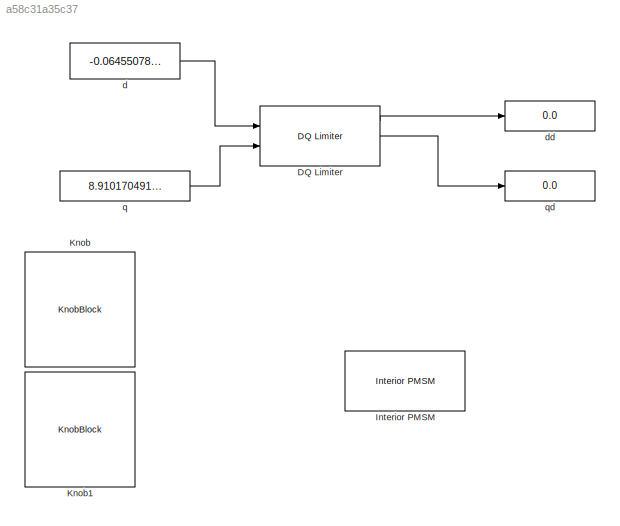
MODEL slx_a58c31a35c37
KIND model
CONFIG AbsTol = auto
CONFIG EnableMultiTasking = off
CONFIG FixedStep = auto
CONFIG MaxStep = auto
CONFIG MinStep = auto
CONFIG RelTol = 1e-3
CONFIG SampleTimeConstraint = Unconstrained
CONFIG SolverName = VariableStepAuto
CONFIG StartTime = 0.0
CONFIG StopTime = 10000
BLOCK [Reference] DQ Limiter  REF=mcbcontrolslib/DQ Limiter
  Ports = [2, 3]
  SourceBlock = mcbcontrolslib/DQ Limiter
  SourceProductBaseCode = MT
  SourceType = DQ Limiter
BLOCK [Reference] Interior PMSM  REF=autolibpmsminterior/Interior PMSM
  Ports = [2, 3]
  SourceBlock = autolibpmsminterior/Interior PMSM
  SourceProductBaseCode = PW,MT,UV,VE,VP
  SourceType = Interior PMSM
BLOCK [KnobBlock] Knob
  ScaleMax = 10
  ScaleMin = -10
BLOCK [KnobBlock] Knob1
  ScaleMax = 10
  ScaleMin = -10
BLOCK [Constant] d
  OutDataTypeStr = single
  Value = -0.06455078125000036
BLOCK [Display] dd
  Decimation = 1
  Ports = [1]
BLOCK [Constant] q
  OutDataTypeStr = single
  Value = 8.910170491536459
BLOCK [Display] qd
  Decimation = 1
  Ports = [1]
LINE DQ Limiter:1 -> dd:1
LINE DQ Limiter:2 -> qd:1
LINE d:1 -> DQ Limiter:1
LINE q:1 -> DQ Limiter:2
